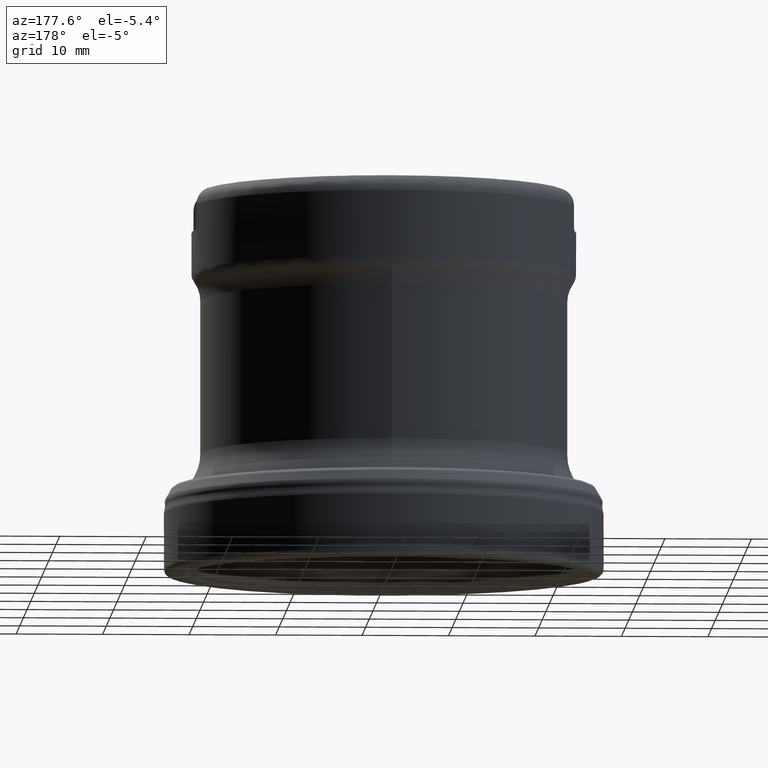
[diagram: clean part render]
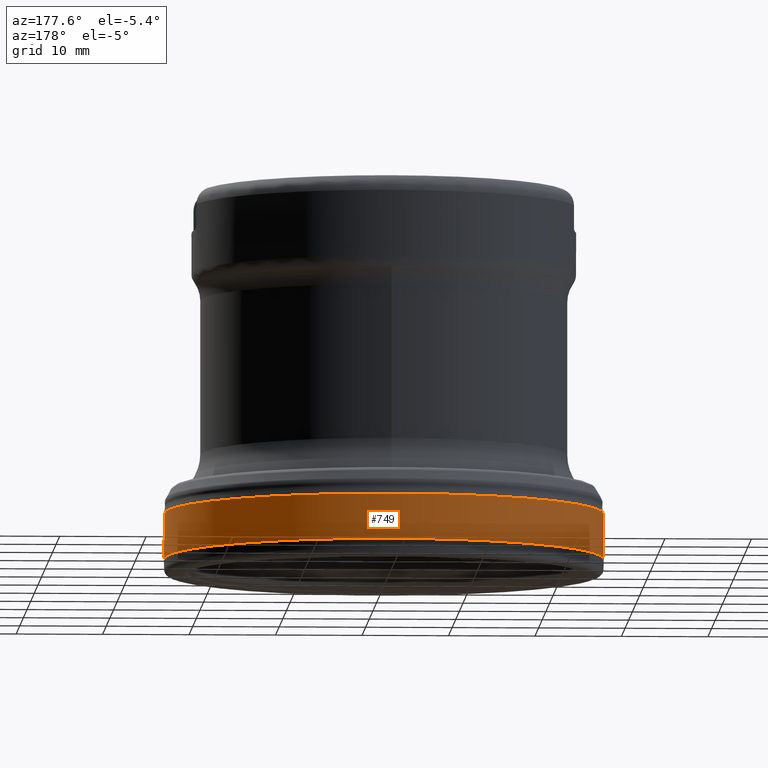
[diagram: same view with one face highlighted and labeled with its STEP entity id]
A machine part, auxiliary view. The second image highlights one B-rep face of the part: STEP entity #749.
In plain terms, the highlighted face is a SurfaceOfRevolution surface.
Its self-contained STEP definition (entity closure, byte-faithful):
#121=SURFACE_OF_REVOLUTION('',#2774,#144);
#144=AXIS1_PLACEMENT('',#7497,#3638);
#351=FACE_BOUND('',#1103,.T.);
#352=FACE_BOUND('',#1104,.T.);
#749=ADVANCED_FACE('',(#351,#352),#121,.F.);
#1103=EDGE_LOOP('',(#1950));
#1104=EDGE_LOOP('',(#1951));
#1227=CIRCLE('',#3038,25.4086227630703);
#1228=CIRCLE('',#3039,25.4342689262902);
#1950=ORIENTED_EDGE('',*,*,#2581,.T.);
#1951=ORIENTED_EDGE('',*,*,#2582,.F.);
#2214=VERTEX_POINT('',#7473);
#2215=VERTEX_POINT('',#7490);
#2581=EDGE_CURVE('',#2214,#2214,#1227,.T.);
#2582=EDGE_CURVE('',#2215,#2215,#1228,.T.);
#2774=B_SPLINE_CURVE_WITH_KNOTS('',5,(#7491,#7492,#7493,#7494,#7495,#7496),
 .UNSPECIFIED.,.F.,.F.,(6,6),(0.,1.),.UNSPECIFIED.);
#3038=AXIS2_PLACEMENT_3D('',#7472,#3633,#3634);
#3039=AXIS2_PLACEMENT_3D('',#7489,#3636,#3637);
#3633=DIRECTION('',(0.,0.,-1.));
#3634=DIRECTION('',(-1.,0.,0.));
#3636=DIRECTION('',(0.,0.,-1.));
#3637=DIRECTION('',(-1.,0.,0.));
#3638=DIRECTION('',(0.,0.,-1.));
#7472=CARTESIAN_POINT('',(0.,0.,7.1460751755146));
#7473=CARTESIAN_POINT('',(-25.4086227630703,0.,7.1460751755146));
#7489=CARTESIAN_POINT('',(0.,0.,1.90791295575332));
#7490=CARTESIAN_POINT('',(-25.4342689262902,0.,1.90791295575332));
#7491=CARTESIAN_POINT('',(25.4342689262901,0.,1.90791295575362));
#7492=CARTESIAN_POINT('',(25.4496953705263,-3.18717452070413E-31,2.95551199716076));
#7493=CARTESIAN_POINT('',(25.4548507895866,-2.36961302743544E-31,4.00326249862553));
#7494=CARTESIAN_POINT('',(25.4497488972199,-2.00162651140638E-30,5.05102892052151));
#7495=CARTESIAN_POINT('',(25.4343610271779,-6.91210116709581E-31,6.0986793811578));
#7496=CARTESIAN_POINT('',(25.4086227630703,0.,7.1460751755146));
#7497=CARTESIAN_POINT('',(0.,0.,0.));